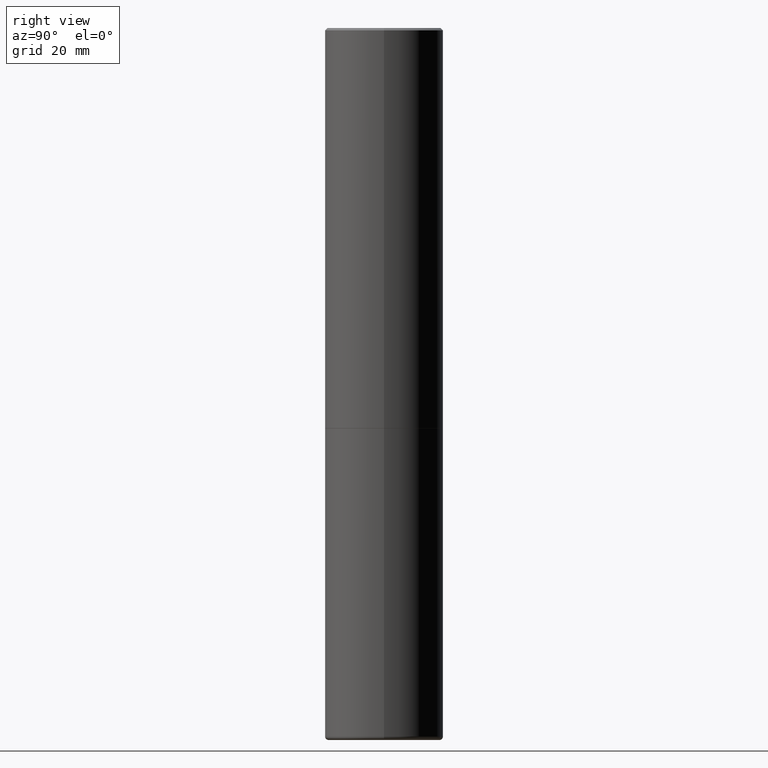
[diagram: clean part render]
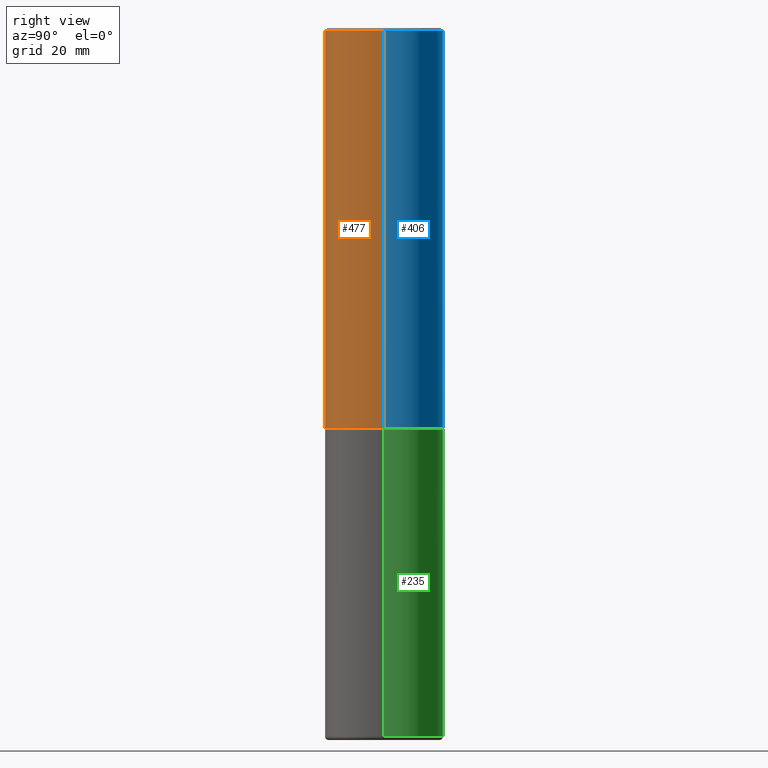
[diagram: same view with three faces highlighted in distinct colors, each labeled with its STEP entity id]
A machine part, right view with three faces highlighted in distinct colors.
Their STEP definitions:

[orange] entity #477 — the highlighted cylindrical surface (partial cylindrical patch) has radius 12.7 mm, axis along (-0, 0, 1).
#1 = VERTEX_POINT ( 'NONE', #338 ) ;
#3 = DIRECTION ( 'NONE',  ( -2.445468806185136597E-29, 3.491481338843145583E-15, 1.000000000000000000 ) ) ;
#18 = DIRECTION ( 'NONE',  ( -2.445468806185136597E-29, 3.491481338843145583E-15, 1.000000000000000000 ) ) ;
#25 = LINE ( 'NONE', #299, #433 ) ;
#29 = FACE_OUTER_BOUND ( 'NONE', #44, .T. ) ;
#37 = CIRCLE ( 'NONE', #439, 0.4999999999999994449 ) ;
#44 = EDGE_LOOP ( 'NONE', ( #197, #86, #382, #441 ) ) ;
#61 = AXIS2_PLACEMENT_3D ( 'NONE', #111, #3, #301 ) ;
#65 = CARTESIAN_POINT ( 'NONE',  ( 0.4999999999999990563, -3.500078625662622769E-15, -0.02000000000000028144 ) ) ;
#86 = ORIENTED_EDGE ( 'NONE', *, *, #274, .T. ) ;
#111 = CARTESIAN_POINT ( 'NONE',  ( 0.000000000000000000, 0.000000000000000000, 0.000000000000000000 ) ) ;
#117 = AXIS2_PLACEMENT_3D ( 'NONE', #275, #422, #129 ) ;
#129 = DIRECTION ( 'NONE',  ( 1.000000000000000000, -6.982962677686266711E-15, 0.000000000000000000 ) ) ;
#187 = DIRECTION ( 'NONE',  ( -2.445468806185136877E-29, 3.491481338843145188E-15, 1.000000000000000000 ) ) ;
#196 = EDGE_CURVE ( 'NONE', #347, #331, #254, .T. ) ;
#197 = ORIENTED_EDGE ( 'NONE', *, *, #355, .F. ) ;
#210 = CARTESIAN_POINT ( 'NONE',  ( -0.4999999999999994449, -2.372330153216321997E-15, -3.374000000000001886 ) ) ;
#212 = CARTESIAN_POINT ( 'NONE',  ( -0.4999999999999990563, 3.421651712066262957E-15, -0.02000000000000028144 ) ) ;
#215 = LINE ( 'NONE', #437, #232 ) ;
#232 = VECTOR ( 'NONE', #472, 39.37007874015748143 ) ;
#254 = CIRCLE ( 'NONE', #117, 0.4999999999999990563 ) ;
#262 = VERTEX_POINT ( 'NONE', #210 ) ;
#274 = EDGE_CURVE ( 'NONE', #262, #1, #37, .T. ) ;
#275 = CARTESIAN_POINT ( 'NONE',  ( 4.890937612370341472E-31, -6.982962677686388984E-17, -0.02000000000000028144 ) ) ;
#299 = CARTESIAN_POINT ( 'NONE',  ( 0.4999999999999992228, -3.491481338843128228E-15, 2.438088387897963973E-29 ) ) ;
#301 = DIRECTION ( 'NONE',  ( 1.000000000000000000, -6.982962677686267499E-15, 4.876176775795935793E-29 ) ) ;
#324 = CARTESIAN_POINT ( 'NONE',  ( 8.251011752068656016E-29, -1.178025803725677782E-14, -3.374000000000001886 ) ) ;
#331 = VERTEX_POINT ( 'NONE', #65 ) ;
#338 = CARTESIAN_POINT ( 'NONE',  ( 0.4999999999999994449, -1.527173937609990644E-14, -3.374000000000001886 ) ) ;
#347 = VERTEX_POINT ( 'NONE', #212 ) ;
#355 = EDGE_CURVE ( 'NONE', #262, #347, #215, .T. ) ;
#382 = ORIENTED_EDGE ( 'NONE', *, *, #420, .T. ) ;
#420 = EDGE_CURVE ( 'NONE', #1, #331, #25, .T. ) ;
#422 = DIRECTION ( 'NONE',  ( -2.445468806185136597E-29, 3.491481338843145583E-15, 1.000000000000000000 ) ) ;
#433 = VECTOR ( 'NONE', #187, 39.37007874015748143 ) ;
#437 = CARTESIAN_POINT ( 'NONE',  ( -0.4999999999999992228, 3.552713678800495407E-15, -2.459467545127449248E-29 ) ) ;
#439 = AXIS2_PLACEMENT_3D ( 'NONE', #324, #18, #476 ) ;
#441 = ORIENTED_EDGE ( 'NONE', *, *, #196, .F. ) ;
#472 = DIRECTION ( 'NONE',  ( -2.445468806185136877E-29, 3.491481338843145188E-15, 1.000000000000000000 ) ) ;
#476 = DIRECTION ( 'NONE',  ( 1.000000000000000000, -6.982962677686266711E-15, 0.000000000000000000 ) ) ;
#477 = ADVANCED_FACE ( 'NONE', ( #29 ), #492, .T. ) ;
#492 = CYLINDRICAL_SURFACE ( 'NONE', #61, 0.4999999999999992228 ) ;

[blue] entity #406 — the highlighted cylindrical surface (partial cylindrical patch) has radius 12.7 mm, axis along (-0, 0, 1).
#1 = VERTEX_POINT ( 'NONE', #338 ) ;
#6 = ORIENTED_EDGE ( 'NONE', *, *, #396, .T. ) ;
#25 = LINE ( 'NONE', #299, #433 ) ;
#65 = CARTESIAN_POINT ( 'NONE',  ( 0.4999999999999990563, -3.500078625662622769E-15, -0.02000000000000028144 ) ) ;
#94 = EDGE_LOOP ( 'NONE', ( #6, #298, #353, #229 ) ) ;
#115 = CYLINDRICAL_SURFACE ( 'NONE', #453, 0.4999999999999992228 ) ;
#118 = DIRECTION ( 'NONE',  ( 1.000000000000000000, -6.982962677686267499E-15, 4.876176775795935793E-29 ) ) ;
#149 = CARTESIAN_POINT ( 'NONE',  ( 8.251011752068656016E-29, -1.178025803725677782E-14, -3.374000000000001886 ) ) ;
#150 = DIRECTION ( 'NONE',  ( 1.000000000000000000, -6.982962677686266711E-15, 0.000000000000000000 ) ) ;
#166 = AXIS2_PLACEMENT_3D ( 'NONE', #448, #190, #263 ) ;
#178 = CIRCLE ( 'NONE', #334, 0.4999999999999994449 ) ;
#184 = DIRECTION ( 'NONE',  ( -2.445468806185136597E-29, 3.491481338843145583E-15, 1.000000000000000000 ) ) ;
#187 = DIRECTION ( 'NONE',  ( -2.445468806185136877E-29, 3.491481338843145188E-15, 1.000000000000000000 ) ) ;
#190 = DIRECTION ( 'NONE',  ( -2.445468806185136597E-29, 3.491481338843145583E-15, 1.000000000000000000 ) ) ;
#210 = CARTESIAN_POINT ( 'NONE',  ( -0.4999999999999994449, -2.372330153216321997E-15, -3.374000000000001886 ) ) ;
#212 = CARTESIAN_POINT ( 'NONE',  ( -0.4999999999999990563, 3.421651712066262957E-15, -0.02000000000000028144 ) ) ;
#215 = LINE ( 'NONE', #437, #232 ) ;
#229 = ORIENTED_EDGE ( 'NONE', *, *, #420, .F. ) ;
#232 = VECTOR ( 'NONE', #472, 39.37007874015748143 ) ;
#262 = VERTEX_POINT ( 'NONE', #210 ) ;
#263 = DIRECTION ( 'NONE',  ( 1.000000000000000000, -6.982962677686266711E-15, 0.000000000000000000 ) ) ;
#296 = DIRECTION ( 'NONE',  ( -2.445468806185136597E-29, 3.491481338843145583E-15, 1.000000000000000000 ) ) ;
#298 = ORIENTED_EDGE ( 'NONE', *, *, #355, .T. ) ;
#299 = CARTESIAN_POINT ( 'NONE',  ( 0.4999999999999992228, -3.491481338843128228E-15, 2.438088387897963973E-29 ) ) ;
#331 = VERTEX_POINT ( 'NONE', #65 ) ;
#334 = AXIS2_PLACEMENT_3D ( 'NONE', #149, #296, #150 ) ;
#338 = CARTESIAN_POINT ( 'NONE',  ( 0.4999999999999994449, -1.527173937609990644E-14, -3.374000000000001886 ) ) ;
#339 = CARTESIAN_POINT ( 'NONE',  ( 0.000000000000000000, 0.000000000000000000, 0.000000000000000000 ) ) ;
#347 = VERTEX_POINT ( 'NONE', #212 ) ;
#353 = ORIENTED_EDGE ( 'NONE', *, *, #466, .F. ) ;
#355 = EDGE_CURVE ( 'NONE', #262, #347, #215, .T. ) ;
#364 = CIRCLE ( 'NONE', #166, 0.4999999999999990563 ) ;
#396 = EDGE_CURVE ( 'NONE', #1, #262, #178, .T. ) ;
#406 = ADVANCED_FACE ( 'NONE', ( #447 ), #115, .T. ) ;
#420 = EDGE_CURVE ( 'NONE', #1, #331, #25, .T. ) ;
#433 = VECTOR ( 'NONE', #187, 39.37007874015748143 ) ;
#437 = CARTESIAN_POINT ( 'NONE',  ( -0.4999999999999992228, 3.552713678800495407E-15, -2.459467545127449248E-29 ) ) ;
#447 = FACE_OUTER_BOUND ( 'NONE', #94, .T. ) ;
#448 = CARTESIAN_POINT ( 'NONE',  ( 4.890937612370341472E-31, -6.982962677686388984E-17, -0.02000000000000028144 ) ) ;
#453 = AXIS2_PLACEMENT_3D ( 'NONE', #339, #184, #118 ) ;
#466 = EDGE_CURVE ( 'NONE', #331, #347, #364, .T. ) ;
#472 = DIRECTION ( 'NONE',  ( -2.445468806185136877E-29, 3.491481338843145188E-15, 1.000000000000000000 ) ) ;

[green] entity #235 — the highlighted cylindrical surface (partial cylindrical patch) has radius 12.7 mm, axis along (-0, 0, 1).
#4 = EDGE_CURVE ( 'NONE', #128, #76, #237, .T. ) ;
#14 = EDGE_CURVE ( 'NONE', #248, #27, #313, .T. ) ;
#27 = VERTEX_POINT ( 'NONE', #469 ) ;
#40 = EDGE_LOOP ( 'NONE', ( #392, #181, #387, #49 ) ) ;
#49 = ORIENTED_EDGE ( 'NONE', *, *, #14, .F. ) ;
#69 = VECTOR ( 'NONE', #352, 39.37007874015748143 ) ;
#76 = VERTEX_POINT ( 'NONE', #354 ) ;
#98 = DIRECTION ( 'NONE',  ( 1.000000000000000000, -6.982962677686269866E-15, 0.000000000000000000 ) ) ;
#108 = DIRECTION ( 'NONE',  ( -2.445468806185136597E-29, 3.491481338843145583E-15, 1.000000000000000000 ) ) ;
#119 = AXIS2_PLACEMENT_3D ( 'NONE', #251, #219, #335 ) ;
#128 = VERTEX_POINT ( 'NONE', #319 ) ;
#138 = DIRECTION ( 'NONE',  ( 1.000000000000000000, -6.982962677686266711E-15, 4.876176775795935232E-29 ) ) ;
#179 = CARTESIAN_POINT ( 'NONE',  ( 1.459945156640402969E-28, -2.084414758124090713E-14, -5.970001142308075437 ) ) ;
#181 = ORIENTED_EDGE ( 'NONE', *, *, #4, .T. ) ;
#186 = CIRCLE ( 'NONE', #473, 0.4999999999999989453 ) ;
#203 = CARTESIAN_POINT ( 'NONE',  ( -0.4999999999999991673, 3.552713678800495013E-15, -2.459467545127448967E-29 ) ) ;
#219 = DIRECTION ( 'NONE',  ( -2.445468806185136597E-29, 3.491481338843145583E-15, 1.000000000000000000 ) ) ;
#235 = ADVANCED_FACE ( 'NONE', ( #328 ), #325, .T. ) ;
#237 = LINE ( 'NONE', #203, #292 ) ;
#248 = VERTEX_POINT ( 'NONE', #401 ) ;
#251 = CARTESIAN_POINT ( 'NONE',  ( 8.253457220874838256E-29, -1.178374951859561925E-14, -3.375000000000000888 ) ) ;
#253 = CARTESIAN_POINT ( 'NONE',  ( 0.000000000000000000, 0.000000000000000000, 0.000000000000000000 ) ) ;
#285 = EDGE_CURVE ( 'NONE', #248, #128, #186, .T. ) ;
#292 = VECTOR ( 'NONE', #388, 39.37007874015748143 ) ;
#311 = CIRCLE ( 'NONE', #119, 0.4999999999999994449 ) ;
#313 = LINE ( 'NONE', #358, #69 ) ;
#319 = CARTESIAN_POINT ( 'NONE',  ( -0.4999999999999989453, -1.276123487111776936E-14, -5.970001142308075437 ) ) ;
#325 = CYLINDRICAL_SURFACE ( 'NONE', #480, 0.4999999999999991673 ) ;
#328 = FACE_OUTER_BOUND ( 'NONE', #40, .T. ) ;
#335 = DIRECTION ( 'NONE',  ( 1.000000000000000000, -6.982962677686266711E-15, 0.000000000000000000 ) ) ;
#352 = DIRECTION ( 'NONE',  ( -2.445468806185136877E-29, 3.491481338843145188E-15, 1.000000000000000000 ) ) ;
#354 = CARTESIAN_POINT ( 'NONE',  ( -0.4999999999999993894, -1.276123487111776936E-14, -3.375000000000000888 ) ) ;
#358 = CARTESIAN_POINT ( 'NONE',  ( 0.4999999999999991673, -3.491481338843127439E-15, 2.438088387897963693E-29 ) ) ;
#387 = ORIENTED_EDGE ( 'NONE', *, *, #391, .F. ) ;
#388 = DIRECTION ( 'NONE',  ( -2.445468806185136877E-29, 3.491481338843145188E-15, 1.000000000000000000 ) ) ;
#391 = EDGE_CURVE ( 'NONE', #27, #76, #311, .T. ) ;
#392 = ORIENTED_EDGE ( 'NONE', *, *, #285, .T. ) ;
#401 = CARTESIAN_POINT ( 'NONE',  ( 0.4999999999999989453, -2.433562892008403418E-14, -5.970001142308075437 ) ) ;
#435 = DIRECTION ( 'NONE',  ( -2.445468806185136597E-29, 3.491481338843145583E-15, 1.000000000000000000 ) ) ;
#469 = CARTESIAN_POINT ( 'NONE',  ( 0.4999999999999994449, -1.527523085743874787E-14, -3.375000000000000888 ) ) ;
#473 = AXIS2_PLACEMENT_3D ( 'NONE', #179, #435, #98 ) ;
#480 = AXIS2_PLACEMENT_3D ( 'NONE', #253, #108, #138 ) ;